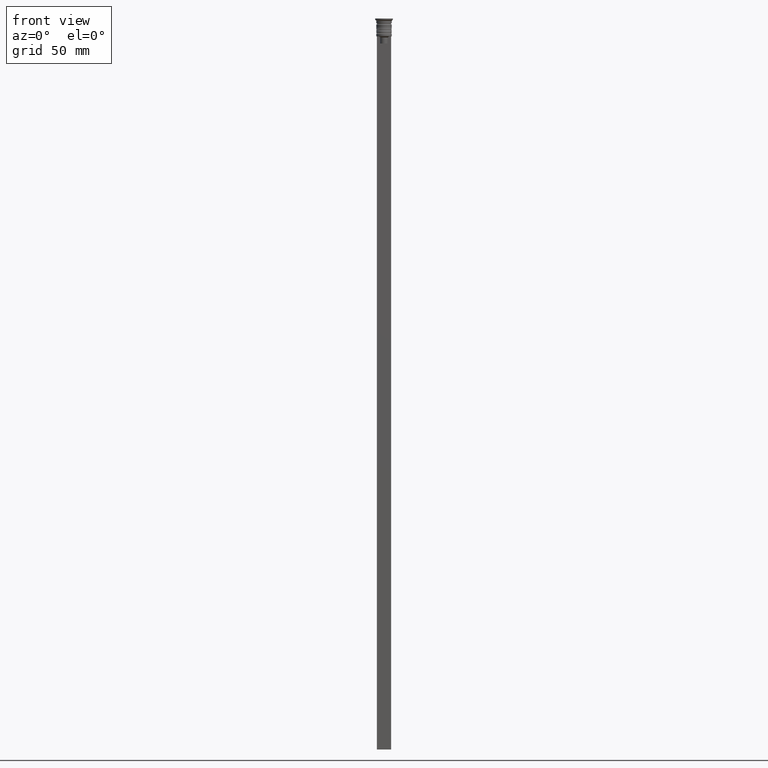
[diagram: clean part render]
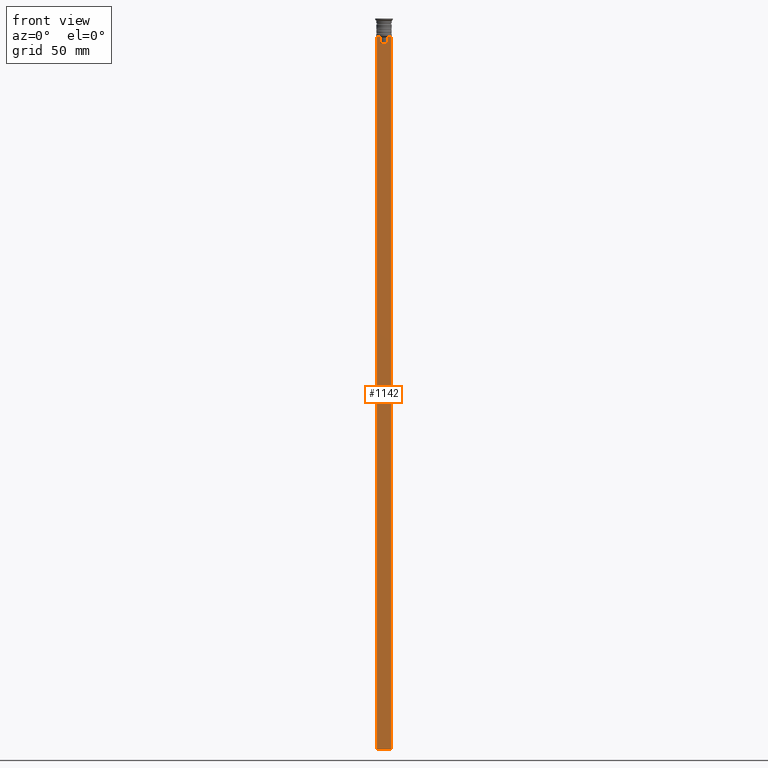
[diagram: same view with one face highlighted and labeled with its STEP entity id]
A machine part, front view. The second image highlights one B-rep face of the part: STEP entity #1142.
In plain terms, the highlighted planar face has unit normal (0, -1, -0).
Its self-contained STEP definition (entity closure, byte-faithful):
#5 = CARTESIAN_POINT ( 'NONE',  ( 1.612451549659713601, -0.3500000000000000333, 0.000000000000000000 ) ) ;
#50 = VERTEX_POINT ( 'NONE', #816 ) ;
#88 = LINE ( 'NONE', #1599, #299 ) ;
#129 = CARTESIAN_POINT ( 'NONE',  ( -3.000000000000004441, -0.3500000000000000333, -1.459304675784417915 ) ) ;
#144 = CARTESIAN_POINT ( 'NONE',  ( -1.952043732028444500, -0.3500000000000000333, -7.667018567316270961 ) ) ;
#153 = CARTESIAN_POINT ( 'NONE',  ( -2.121320343559647270, -0.3500000000000000333, -7.500000000000000000 ) ) ;
#187 = CARTESIAN_POINT ( 'NONE',  ( 2.999999999999995559, -0.3500000000000000333, -1.459304675784417915 ) ) ;
#239 = VECTOR ( 'NONE', #1511, 1000.000000000000000 ) ;
#246 = CARTESIAN_POINT ( 'NONE',  ( -3.000000000000004441, -0.3500000000000000333, -307.5000000000000000 ) ) ;
#259 = B_SPLINE_CURVE_WITH_KNOTS ( 'NONE', 3,
 ( #153, #144, #1354, #490 ),
 .UNSPECIFIED., .F., .F.,
 ( 4, 4 ),
 ( 0.003684653461239337929, 0.004398058763641257696 ),
 .UNSPECIFIED. ) ;
#277 = EDGE_CURVE ( 'NONE', #359, #50, #1887, .T. ) ;
#299 = VECTOR ( 'NONE', #1915, 1000.000000000000000 ) ;
#319 = VERTEX_POINT ( 'NONE', #1373 ) ;
#327 = CARTESIAN_POINT ( 'NONE',  ( 1.782523989086206795, -0.3500000000000000333, -7.833797837268088315 ) ) ;
#341 = CARTESIAN_POINT ( 'NONE',  ( -1.612451549659713601, -0.3500000000000000333, 0.000000000000000000 ) ) ;
#342 = VECTOR ( 'NONE', #1302, 1000.000000000000000 ) ;
#359 = VERTEX_POINT ( 'NONE', #1756 ) ;
#394 = EDGE_CURVE ( 'NONE', #319, #1171, #931, .T. ) ;
#442 = VECTOR ( 'NONE', #755, 1000.000000000000000 ) ;
#490 = CARTESIAN_POINT ( 'NONE',  ( -1.612451549659713601, -0.3500000000000000333, -8.000000000000000000 ) ) ;
#495 = LINE ( 'NONE', #5, #239 ) ;
#514 = CARTESIAN_POINT ( 'NONE',  ( 1.952040775369266346, -0.3500000000000000333, -7.667021484535463394 ) ) ;
#550 = EDGE_CURVE ( 'NONE', #1546, #1629, #495, .T. ) ;
#555 = ORIENTED_EDGE ( 'NONE', *, *, #1641, .F. ) ;
#568 = VERTEX_POINT ( 'NONE', #1673 ) ;
#579 = EDGE_CURVE ( 'NONE', #568, #1546, #1357, .T. ) ;
#587 = VECTOR ( 'NONE', #1785, 1000.000000000000000 ) ;
#590 = ORIENTED_EDGE ( 'NONE', *, *, #394, .F. ) ;
#755 = DIRECTION ( 'NONE',  ( 1.000000000000000000, 0.000000000000000000, 0.000000000000000000 ) ) ;
#771 = EDGE_CURVE ( 'NONE', #319, #2033, #1468, .T. ) ;
#784 = FACE_OUTER_BOUND ( 'NONE', #1698, .T. ) ;
#800 = DIRECTION ( 'NONE',  ( 0.000000000000000000, 0.000000000000000000, -1.000000000000000000 ) ) ;
#816 = CARTESIAN_POINT ( 'NONE',  ( 2.999999999999995559, -0.3500000000000000333, -307.5000000000000000 ) ) ;
#837 = DIRECTION ( 'NONE',  ( 1.000000000000000000, 0.000000000000000000, 0.000000000000000000 ) ) ;
#904 = AXIS2_PLACEMENT_3D ( 'NONE', #2115, #1624, #941 ) ;
#914 = CARTESIAN_POINT ( 'NONE',  ( 1.612451549659713601, -0.3500000000000000333, -8.000000000000000000 ) ) ;
#931 = LINE ( 'NONE', #1555, #442 ) ;
#941 = DIRECTION ( 'NONE',  ( 0.000000000000000000, 0.000000000000000000, -1.000000000000000000 ) ) ;
#985 = ORIENTED_EDGE ( 'NONE', *, *, #277, .F. ) ;
#1142 = ADVANCED_FACE ( 'NONE', ( #784 ), #1456, .T. ) ;
#1171 = VERTEX_POINT ( 'NONE', #1942 ) ;
#1226 = EDGE_CURVE ( 'NONE', #1255, #359, #1590, .T. ) ;
#1240 = ORIENTED_EDGE ( 'NONE', *, *, #550, .F. ) ;
#1255 = VERTEX_POINT ( 'NONE', #1763 ) ;
#1282 = VECTOR ( 'NONE', #800, 1000.000000000000000 ) ;
#1291 = CARTESIAN_POINT ( 'NONE',  ( 2.999999999999995559, -0.3500000000000000333, -7.500000000000000000 ) ) ;
#1302 = DIRECTION ( 'NONE',  ( 0.000000000000000000, 0.000000000000000000, -1.000000000000000000 ) ) ;
#1354 = CARTESIAN_POINT ( 'NONE',  ( -1.782527878033862478, -0.3500000000000000333, -7.833794036819864637 ) ) ;
#1357 = LINE ( 'NONE', #1499, #1884 ) ;
#1358 = VECTOR ( 'NONE', #1537, 1000.000000000000000 ) ;
#1373 = CARTESIAN_POINT ( 'NONE',  ( -3.000000000000004441, -0.3500000000000000333, -7.500000000000000000 ) ) ;
#1403 = CARTESIAN_POINT ( 'NONE',  ( 1.612451549659713601, -0.3500000000000000333, -10.49999999999999822 ) ) ;
#1456 = PLANE ( 'NONE',  #904 ) ;
#1468 = LINE ( 'NONE', #129, #342 ) ;
#1499 = CARTESIAN_POINT ( 'NONE',  ( 0.000000000000000000, -0.3500000000000000333, -10.49999999999999822 ) ) ;
#1511 = DIRECTION ( 'NONE',  ( -0.000000000000000000, -0.000000000000000000, 1.000000000000000000 ) ) ;
#1527 = ORIENTED_EDGE ( 'NONE', *, *, #579, .F. ) ;
#1537 = DIRECTION ( 'NONE',  ( 0.000000000000000000, 0.000000000000000000, -1.000000000000000000 ) ) ;
#1546 = VERTEX_POINT ( 'NONE', #1403 ) ;
#1555 = CARTESIAN_POINT ( 'NONE',  ( 2.999999999999995559, -0.3500000000000000333, -7.500000000000000000 ) ) ;
#1590 = LINE ( 'NONE', #1291, #587 ) ;
#1599 = CARTESIAN_POINT ( 'NONE',  ( 2.999999999999995559, -0.3500000000000000333, -307.5000000000000000 ) ) ;
#1624 = DIRECTION ( 'NONE',  ( 0.000000000000000000, -1.000000000000000000, -0.000000000000000000 ) ) ;
#1629 = VERTEX_POINT ( 'NONE', #914 ) ;
#1641 = EDGE_CURVE ( 'NONE', #50, #2033, #88, .T. ) ;
#1647 = ORIENTED_EDGE ( 'NONE', *, *, #1719, .F. ) ;
#1673 = CARTESIAN_POINT ( 'NONE',  ( -1.612451549659713601, -0.3500000000000000333, -10.49999999999999822 ) ) ;
#1690 = CARTESIAN_POINT ( 'NONE',  ( 2.121320343559647270, -0.3500000000000000333, -7.500000000000000000 ) ) ;
#1698 = EDGE_LOOP ( 'NONE', ( #1938, #590, #2172, #555, #985, #1830, #1647, #1240, #1527, #1944 ) ) ;
#1707 = EDGE_CURVE ( 'NONE', #1171, #2081, #259, .T. ) ;
#1719 = EDGE_CURVE ( 'NONE', #1629, #1255, #2034, .T. ) ;
#1756 = CARTESIAN_POINT ( 'NONE',  ( 2.999999999999995559, -0.3500000000000000333, -7.500000000000000000 ) ) ;
#1763 = CARTESIAN_POINT ( 'NONE',  ( 2.121320343559647270, -0.3500000000000000333, -7.500000000000000000 ) ) ;
#1785 = DIRECTION ( 'NONE',  ( 1.000000000000000000, 0.000000000000000000, 0.000000000000000000 ) ) ;
#1830 = ORIENTED_EDGE ( 'NONE', *, *, #1226, .F. ) ;
#1838 = EDGE_CURVE ( 'NONE', #2081, #568, #1843, .T. ) ;
#1843 = LINE ( 'NONE', #341, #1282 ) ;
#1884 = VECTOR ( 'NONE', #837, 1000.000000000000000 ) ;
#1887 = LINE ( 'NONE', #187, #1358 ) ;
#1915 = DIRECTION ( 'NONE',  ( -1.000000000000000000, 0.000000000000000000, 0.000000000000000000 ) ) ;
#1938 = ORIENTED_EDGE ( 'NONE', *, *, #1707, .F. ) ;
#1942 = CARTESIAN_POINT ( 'NONE',  ( -2.121320343559647270, -0.3500000000000000333, -7.500000000000000000 ) ) ;
#1944 = ORIENTED_EDGE ( 'NONE', *, *, #1838, .F. ) ;
#2020 = CARTESIAN_POINT ( 'NONE',  ( 1.612451549659713601, -0.3500000000000000333, -8.000000000000000000 ) ) ;
#2033 = VERTEX_POINT ( 'NONE', #246 ) ;
#2034 = B_SPLINE_CURVE_WITH_KNOTS ( 'NONE', 3,
 ( #2020, #327, #514, #1690 ),
 .UNSPECIFIED., .F., .F.,
 ( 4, 4 ),
 ( 0.008600796474521228696, 0.009317962624906526645 ),
 .UNSPECIFIED. ) ;
#2081 = VERTEX_POINT ( 'NONE', #2109 ) ;
#2109 = CARTESIAN_POINT ( 'NONE',  ( -1.612451549659713601, -0.3500000000000000333, -8.000000000000000000 ) ) ;
#2115 = CARTESIAN_POINT ( 'NONE',  ( 2.999999999999995559, -0.3500000000000000333, -1.459304675784417915 ) ) ;
#2172 = ORIENTED_EDGE ( 'NONE', *, *, #771, .T. ) ;